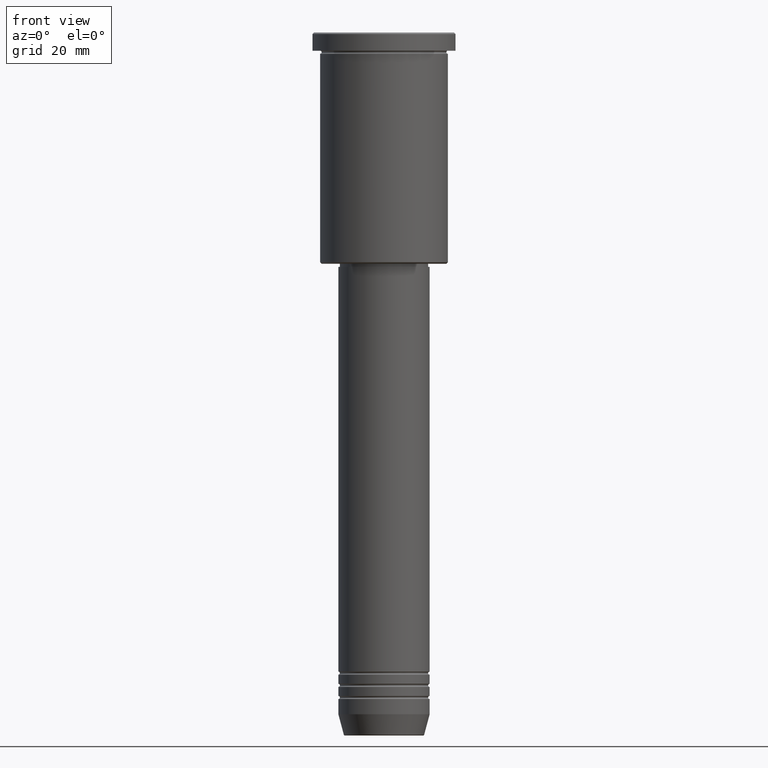
[diagram: clean part render]
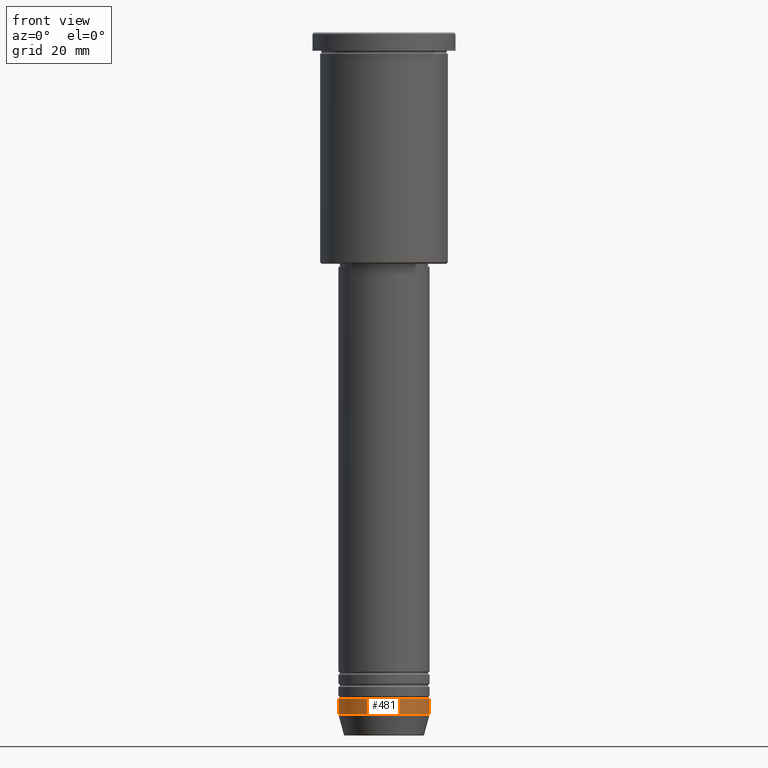
[diagram: same view with one face highlighted and labeled with its STEP entity id]
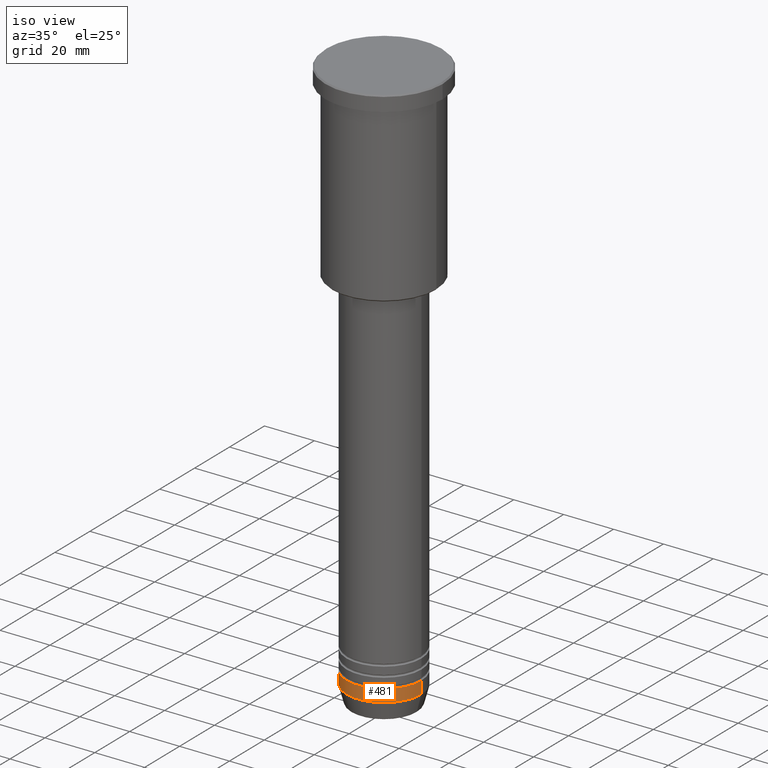
[diagram: same view with one face highlighted and labeled with its STEP entity id]
A machine part, front view. The second image highlights one B-rep face of the part: STEP entity #481.
A second angle (iso view) of the same face is appended — the face is thin or edge-on in the first view.
In plain terms, the highlighted cylindrical surface (partial cylindrical patch) has radius 15 mm, axis along (-0, -0, 1).
Its self-contained STEP definition (entity closure, byte-faithful):
#36 = CARTESIAN_POINT ( 'NONE',  ( 15.00000000000000000, 0.000000000000000000, -223.9999999999999716 ) ) ;
#57 = EDGE_LOOP ( 'NONE', ( #127, #738, #1129, #591 ) ) ;
#95 = CARTESIAN_POINT ( 'NONE',  ( -15.00000000000000000, 1.836970198721029589E-15, 0.000000000000000000 ) ) ;
#127 = ORIENTED_EDGE ( 'NONE', *, *, #325, .F. ) ;
#147 = VERTEX_POINT ( 'NONE', #36 ) ;
#148 = CARTESIAN_POINT ( 'NONE',  ( 15.00000000000000000, 0.000000000000000000, -219.0000000000000000 ) ) ;
#163 = CARTESIAN_POINT ( 'NONE',  ( -15.00000000000000000, 1.836970198721029589E-15, -219.0000000000000000 ) ) ;
#164 = LINE ( 'NONE', #996, #864 ) ;
#297 = CARTESIAN_POINT ( 'NONE',  ( 0.000000000000000000, 0.000000000000000000, -223.9999999999999716 ) ) ;
#325 = EDGE_CURVE ( 'NONE', #450, #1180, #1082, .T. ) ;
#414 = AXIS2_PLACEMENT_3D ( 'NONE', #990, #1035, #1103 ) ;
#450 = VERTEX_POINT ( 'NONE', #1096 ) ;
#463 = DIRECTION ( 'NONE',  ( -0.000000000000000000, -0.000000000000000000, 1.000000000000000000 ) ) ;
#471 = EDGE_CURVE ( 'NONE', #1180, #957, #746, .T. ) ;
#473 = DIRECTION ( 'NONE',  ( 1.000000000000000000, 0.000000000000000000, 0.000000000000000000 ) ) ;
#481 = ADVANCED_FACE ( 'NONE', ( #1010 ), #1116, .T. ) ;
#493 = EDGE_CURVE ( 'NONE', #450, #147, #905, .T. ) ;
#506 = VECTOR ( 'NONE', #906, 1000.000000000000000 ) ;
#539 = DIRECTION ( 'NONE',  ( -0.000000000000000000, -0.000000000000000000, 1.000000000000000000 ) ) ;
#551 = CARTESIAN_POINT ( 'NONE',  ( 0.000000000000000000, 0.000000000000000000, 0.000000000000000000 ) ) ;
#591 = ORIENTED_EDGE ( 'NONE', *, *, #471, .F. ) ;
#688 = AXIS2_PLACEMENT_3D ( 'NONE', #297, #758, #749 ) ;
#737 = EDGE_CURVE ( 'NONE', #147, #957, #164, .T. ) ;
#738 = ORIENTED_EDGE ( 'NONE', *, *, #493, .T. ) ;
#746 = CIRCLE ( 'NONE', #414, 15.00000000000000000 ) ;
#749 = DIRECTION ( 'NONE',  ( 1.000000000000000000, 0.000000000000000000, 0.000000000000000000 ) ) ;
#758 = DIRECTION ( 'NONE',  ( -0.000000000000000000, -0.000000000000000000, 1.000000000000000000 ) ) ;
#864 = VECTOR ( 'NONE', #539, 1000.000000000000000 ) ;
#905 = CIRCLE ( 'NONE', #688, 15.00000000000000000 ) ;
#906 = DIRECTION ( 'NONE',  ( -0.000000000000000000, -0.000000000000000000, 1.000000000000000000 ) ) ;
#957 = VERTEX_POINT ( 'NONE', #148 ) ;
#972 = AXIS2_PLACEMENT_3D ( 'NONE', #551, #463, #473 ) ;
#990 = CARTESIAN_POINT ( 'NONE',  ( 0.000000000000000000, 0.000000000000000000, -219.0000000000000000 ) ) ;
#996 = CARTESIAN_POINT ( 'NONE',  ( 15.00000000000000000, 0.000000000000000000, 0.000000000000000000 ) ) ;
#1010 = FACE_OUTER_BOUND ( 'NONE', #57, .T. ) ;
#1035 = DIRECTION ( 'NONE',  ( -0.000000000000000000, -0.000000000000000000, 1.000000000000000000 ) ) ;
#1082 = LINE ( 'NONE', #95, #506 ) ;
#1096 = CARTESIAN_POINT ( 'NONE',  ( -15.00000000000000000, 1.836970198721029589E-15, -223.9999999999999716 ) ) ;
#1103 = DIRECTION ( 'NONE',  ( 1.000000000000000000, 0.000000000000000000, 0.000000000000000000 ) ) ;
#1116 = CYLINDRICAL_SURFACE ( 'NONE', #972, 15.00000000000000000 ) ;
#1129 = ORIENTED_EDGE ( 'NONE', *, *, #737, .T. ) ;
#1180 = VERTEX_POINT ( 'NONE', #163 ) ;